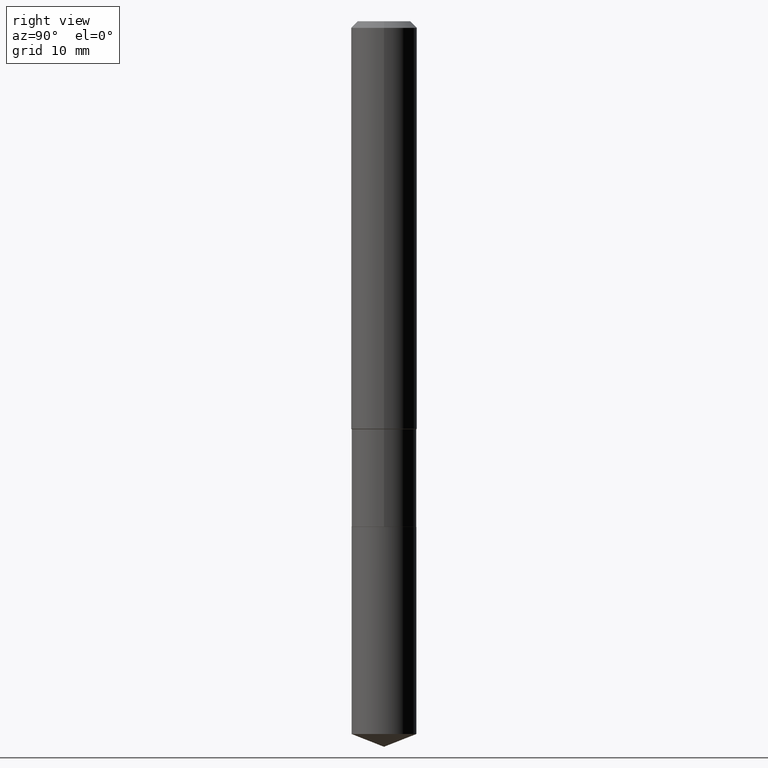
[diagram: clean part render]
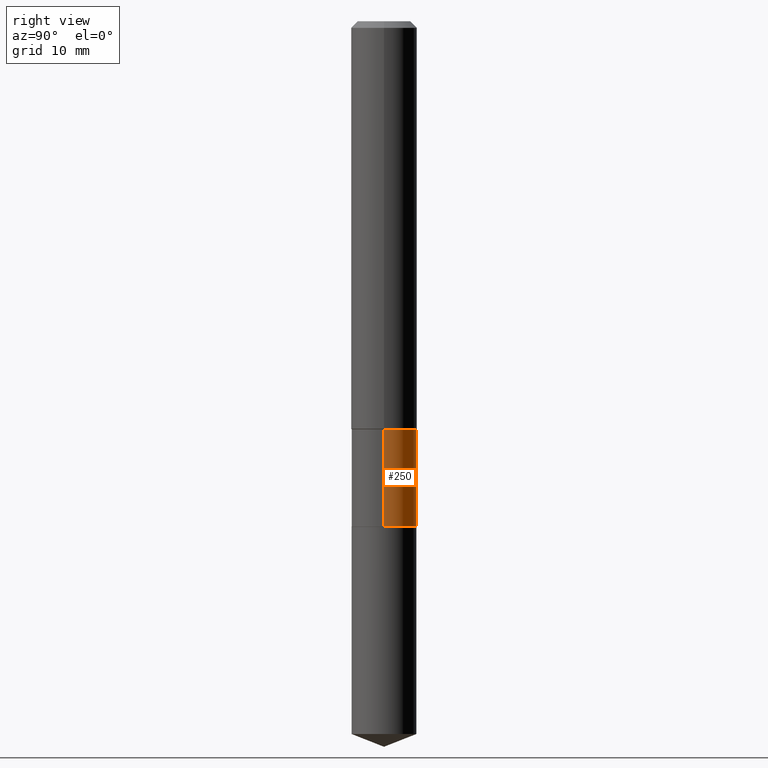
[diagram: same view with one face highlighted and labeled with its STEP entity id]
A machine part, right view. The second image highlights one B-rep face of the part: STEP entity #250.
In plain terms, the highlighted cylindrical surface (edge-blend (fillet) strip) has radius 2.9502 mm, axis along (-0, 0, 1).
Its self-contained STEP definition (entity closure, byte-faithful):
#22 = LINE ( 'NONE', #343, #224 ) ;
#39 = ORIENTED_EDGE ( 'NONE', *, *, #40, .F. ) ;
#40 = EDGE_CURVE ( 'NONE', #149, #458, #339, .T. ) ;
#49 = VERTEX_POINT ( 'NONE', #409 ) ;
#53 = AXIS2_PLACEMENT_3D ( 'NONE', #146, #469, #480 ) ;
#70 = VERTEX_POINT ( 'NONE', #323 ) ;
#72 = VECTOR ( 'NONE', #282, 39.37007874015748143 ) ;
#87 = EDGE_LOOP ( 'NONE', ( #172, #223, #39, #426 ) ) ;
#91 = FACE_OUTER_BOUND ( 'NONE', #87, .T. ) ;
#110 = DIRECTION ( 'NONE',  ( -2.445468806185136597E-29, 3.491481338843145583E-15, 1.000000000000000000 ) ) ;
#146 = CARTESIAN_POINT ( 'NONE',  ( 0.000000000000000000, 0.000000000000000000, 0.000000000000000000 ) ) ;
#149 = VERTEX_POINT ( 'NONE', #455 ) ;
#165 = CARTESIAN_POINT ( 'NONE',  ( 3.573319019597720765E-29, -5.101752532317603189E-15, -1.461199999999999610 ) ) ;
#172 = ORIENTED_EDGE ( 'NONE', *, *, #307, .T. ) ;
#194 = AXIS2_PLACEMENT_3D ( 'NONE', #351, #466, #287 ) ;
#207 = EDGE_CURVE ( 'NONE', #49, #458, #285, .T. ) ;
#208 = CYLINDRICAL_SURFACE ( 'NONE', #53, 0.1161499999999999755 ) ;
#223 = ORIENTED_EDGE ( 'NONE', *, *, #207, .T. ) ;
#224 = VECTOR ( 'NONE', #229, 39.37007874015748143 ) ;
#229 = DIRECTION ( 'NONE',  ( -2.445468806185136877E-29, 3.491481338843145188E-15, 1.000000000000000000 ) ) ;
#230 = AXIS2_PLACEMENT_3D ( 'NONE', #165, #110, #259 ) ;
#245 = CARTESIAN_POINT ( 'NONE',  ( -0.1161499999999999477, -4.886244360561203043E-15, -1.461199999999999610 ) ) ;
#250 = ADVANCED_FACE ( 'NONE', ( #91 ), #208, .T. ) ;
#259 = DIRECTION ( 'NONE',  ( 1.000000000000000000, -6.982962677686269866E-15, 0.000000000000000000 ) ) ;
#276 = CIRCLE ( 'NONE', #194, 0.1161500000000000032 ) ;
#282 = DIRECTION ( 'NONE',  ( -2.445468806185136877E-29, 3.491481338843145188E-15, 1.000000000000000000 ) ) ;
#285 = LINE ( 'NONE', #397, #72 ) ;
#287 = DIRECTION ( 'NONE',  ( 1.000000000000000000, -6.982962677686265922E-15, 0.000000000000000000 ) ) ;
#307 = EDGE_CURVE ( 'NONE', #70, #49, #276, .T. ) ;
#323 = CARTESIAN_POINT ( 'NONE',  ( 0.1161500000000000032, -7.132398078988774237E-15, -1.810499999999999998 ) ) ;
#339 = CIRCLE ( 'NONE', #230, 0.1161499999999999477 ) ;
#343 = CARTESIAN_POINT ( 'NONE',  ( 0.1161499999999999755, -8.110711150132597459E-16, 5.663679325086977697E-30 ) ) ;
#351 = CARTESIAN_POINT ( 'NONE',  ( 4.427521273598189436E-29, -6.321326963975514491E-15, -1.810499999999999998 ) ) ;
#397 = CARTESIAN_POINT ( 'NONE',  ( -0.1161499999999999755, 8.252953875853561917E-16, -5.713343107331072131E-30 ) ) ;
#409 = CARTESIAN_POINT ( 'NONE',  ( -0.1161500000000000032, -4.886244360561203043E-15, -1.810499999999999998 ) ) ;
#416 = EDGE_CURVE ( 'NONE', #70, #149, #22, .T. ) ;
#426 = ORIENTED_EDGE ( 'NONE', *, *, #416, .F. ) ;
#455 = CARTESIAN_POINT ( 'NONE',  ( 0.1161499999999999477, -5.912823647330862935E-15, -1.461199999999999610 ) ) ;
#458 = VERTEX_POINT ( 'NONE', #245 ) ;
#466 = DIRECTION ( 'NONE',  ( -2.445468806185136597E-29, 3.491481338843145583E-15, 1.000000000000000000 ) ) ;
#469 = DIRECTION ( 'NONE',  ( -2.445468806185136597E-29, 3.491481338843145583E-15, 1.000000000000000000 ) ) ;
#480 = DIRECTION ( 'NONE',  ( 1.000000000000000000, -6.982962677686266711E-15, 4.876176775795935232E-29 ) ) ;